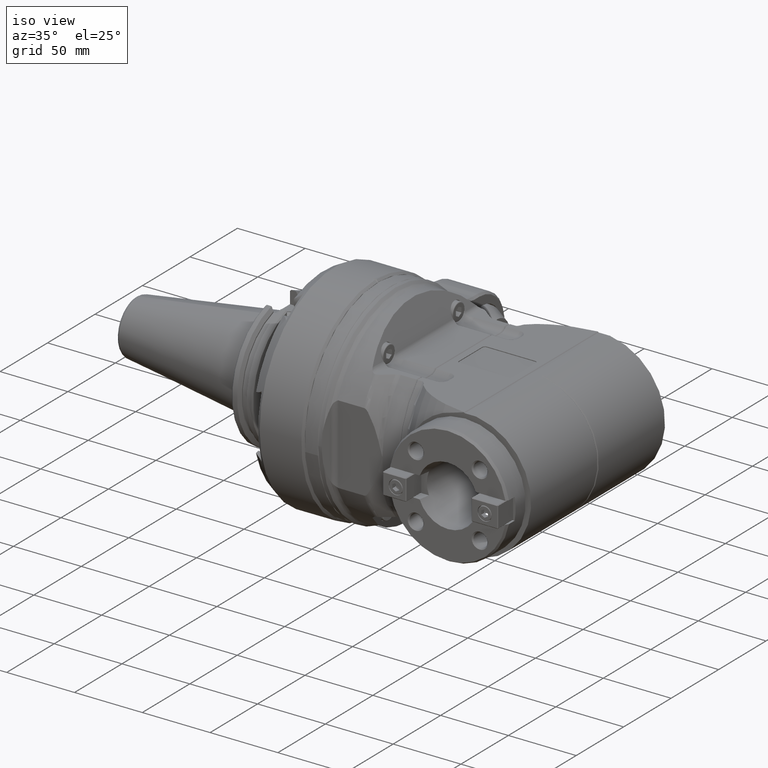
[diagram: clean part render]
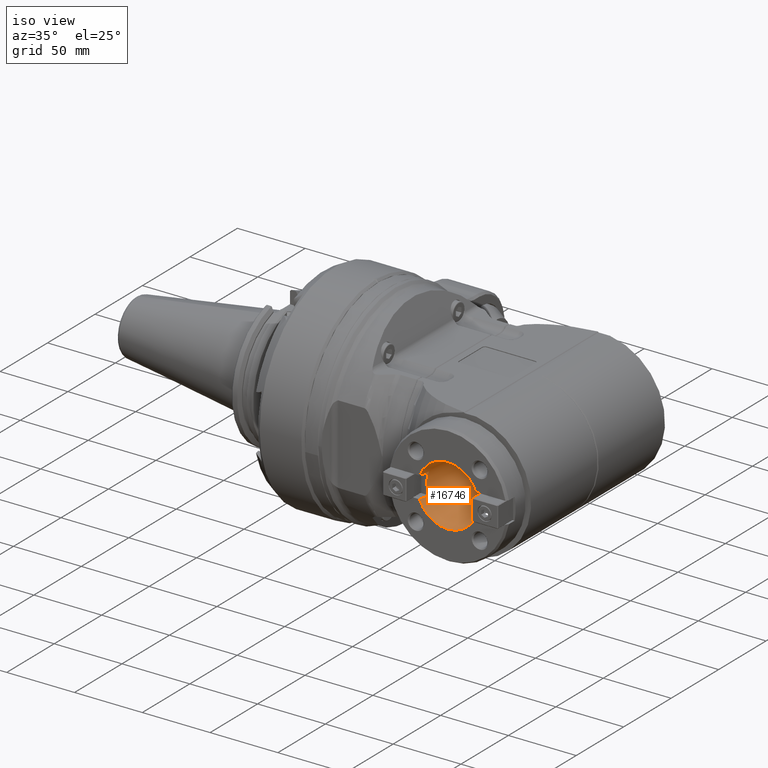
[diagram: same view with one face highlighted and labeled with its STEP entity id]
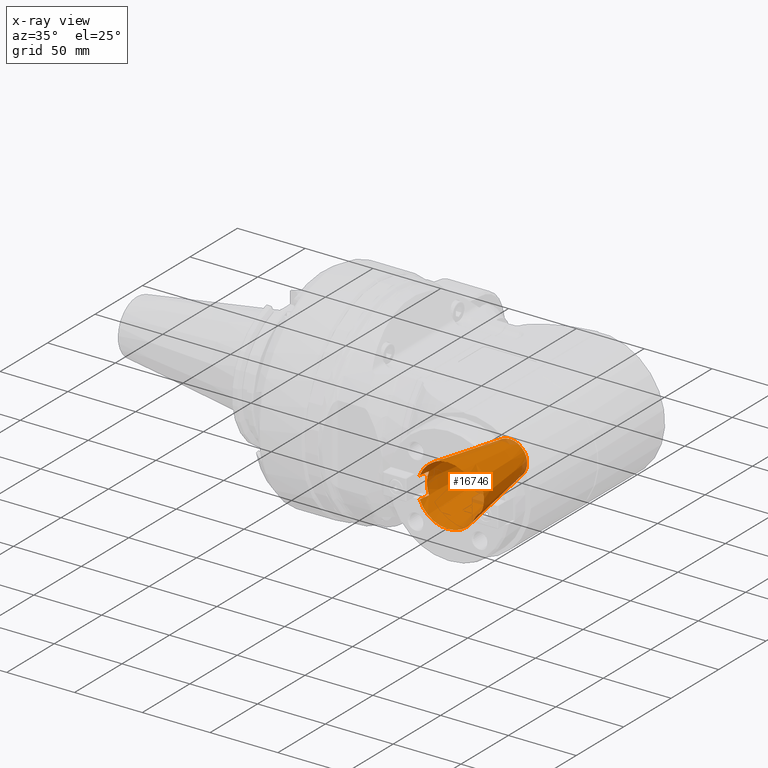
[diagram: x-ray of the same camera — body ghosted, the highlighted face saturated]
A machine part, iso view. The second image highlights one B-rep face of the part: STEP entity #16746.
The next image is the same camera in x-ray: the body ghosted, the highlighted face saturated — about 6% of this face is hidden behind the body in this view.
In plain terms, the highlighted conical surface has half-angle 8.297 deg.
Its self-contained STEP definition (entity closure, byte-faithful):
#258=(
BOUNDED_CURVE()
B_SPLINE_CURVE(2,(#41829,#41830,#41831),.UNSPECIFIED.,.F.,.F.)
B_SPLINE_CURVE_WITH_KNOTS((3,3),(-6.78852029854391,-6.20231524291867),
 .UNSPECIFIED.)
CURVE()
GEOMETRIC_REPRESENTATION_ITEM()
RATIONAL_B_SPLINE_CURVE((1.00114981680784,1.00588583737851,1.00979535053178))
REPRESENTATION_ITEM('')
);
#259=(
BOUNDED_CURVE()
B_SPLINE_CURVE(2,(#41839,#41840,#41841),.UNSPECIFIED.,.F.,.F.)
B_SPLINE_CURVE_WITH_KNOTS((3,3),(6.20231524142966,6.78852029689591),
 .UNSPECIFIED.)
CURVE()
GEOMETRIC_REPRESENTATION_ITEM()
RATIONAL_B_SPLINE_CURVE((1.0097953504751,1.0058858373194,1.00114981674638))
REPRESENTATION_ITEM('')
);
#260=(
BOUNDED_CURVE()
B_SPLINE_CURVE(2,(#41843,#41844,#41845),.UNSPECIFIED.,.F.,.F.)
B_SPLINE_CURVE_WITH_KNOTS((3,3),(0.0704216012168625,0.656626656842231),
 .UNSPECIFIED.)
CURVE()
GEOMETRIC_REPRESENTATION_ITEM()
RATIONAL_B_SPLINE_CURVE((1.00114981680784,1.00588583737849,1.00979535053175))
REPRESENTATION_ITEM('')
);
#261=(
BOUNDED_CURVE()
B_SPLINE_CURVE(2,(#41848,#41849,#41850),.UNSPECIFIED.,.F.,.F.)
B_SPLINE_CURVE_WITH_KNOTS((3,3),(6.20231524291798,6.78852029854373),
 .UNSPECIFIED.)
CURVE()
GEOMETRIC_REPRESENTATION_ITEM()
RATIONAL_B_SPLINE_CURVE((1.00979535053173,1.00588583737848,1.00114981680784))
REPRESENTATION_ITEM('')
);
#458=CONICAL_SURFACE('',#18532,17.43749997768,0.14481239404563);
#1976=FACE_OUTER_BOUND('',#2957,.T.);
#2957=EDGE_LOOP('',(#14131,#14132,#14133,#14134,#14135,#14136,#14137,#14138,
#14139,#14140,#14141,#14142,#14143));
#3982=LINE('',#41836,#5205);
#5205=VECTOR('',#22639,17.43749997768);
#6213=CIRCLE('',#18492,22.22499995537);
#6214=CIRCLE('',#18493,22.22499995537);
#6221=CIRCLE('',#18512,22.22499995537);
#6225=CIRCLE('',#18533,12.65);
#6226=CIRCLE('',#18534,21.05833418461);
#6227=CIRCLE('',#18535,21.05833418461);
#6228=CIRCLE('',#18536,12.65);
#7483=VERTEX_POINT('',#41645);
#7484=VERTEX_POINT('',#41647);
#7485=VERTEX_POINT('',#41649);
#7515=VERTEX_POINT('',#41733);
#7516=VERTEX_POINT('',#41735);
#7546=VERTEX_POINT('',#41827);
#7547=VERTEX_POINT('',#41833);
#7548=VERTEX_POINT('',#41834);
#7549=VERTEX_POINT('',#41837);
#7550=VERTEX_POINT('',#41842);
#7551=VERTEX_POINT('',#41846);
#9753=EDGE_CURVE('',#7483,#7484,#6213,.T.);
#9754=EDGE_CURVE('',#7484,#7485,#6214,.T.);
#9797=EDGE_CURVE('',#7515,#7516,#6221,.T.);
#9844=EDGE_CURVE('',#7483,#7546,#258,.T.);
#9845=EDGE_CURVE('',#7547,#7548,#6225,.T.);
#9846=EDGE_CURVE('',#7548,#7484,#3982,.T.);
#9847=EDGE_CURVE('',#7549,#7546,#6226,.T.);
#9848=EDGE_CURVE('',#7549,#7516,#259,.T.);
#9849=EDGE_CURVE('',#7515,#7550,#260,.T.);
#9850=EDGE_CURVE('',#7551,#7550,#6227,.T.);
#9851=EDGE_CURVE('',#7551,#7485,#261,.T.);
#9852=EDGE_CURVE('',#7548,#7547,#6228,.T.);
#14131=ORIENTED_EDGE('',*,*,#9845,.T.);
#14132=ORIENTED_EDGE('',*,*,#9846,.T.);
#14133=ORIENTED_EDGE('',*,*,#9753,.F.);
#14134=ORIENTED_EDGE('',*,*,#9844,.T.);
#14135=ORIENTED_EDGE('',*,*,#9847,.F.);
#14136=ORIENTED_EDGE('',*,*,#9848,.T.);
#14137=ORIENTED_EDGE('',*,*,#9797,.F.);
#14138=ORIENTED_EDGE('',*,*,#9849,.T.);
#14139=ORIENTED_EDGE('',*,*,#9850,.F.);
#14140=ORIENTED_EDGE('',*,*,#9851,.T.);
#14141=ORIENTED_EDGE('',*,*,#9754,.F.);
#14142=ORIENTED_EDGE('',*,*,#9846,.F.);
#14143=ORIENTED_EDGE('',*,*,#9852,.T.);
#16746=ADVANCED_FACE('',(#1976),#458,.F.);
#18492=AXIS2_PLACEMENT_3D('',#41648,#22476,#22477);
#18493=AXIS2_PLACEMENT_3D('',#41650,#22478,#22479);
#18512=AXIS2_PLACEMENT_3D('',#41736,#22552,#22553);
#18532=AXIS2_PLACEMENT_3D('',#41832,#22635,#22636);
#18533=AXIS2_PLACEMENT_3D('',#41835,#22637,#22638);
#18534=AXIS2_PLACEMENT_3D('',#41838,#22640,#22641);
#18535=AXIS2_PLACEMENT_3D('',#41847,#22642,#22643);
#18536=AXIS2_PLACEMENT_3D('',#41851,#22644,#22645);
#22476=DIRECTION('center_axis',(0.,1.,4.660711595067E-9));
#22477=DIRECTION('ref_axis',(7.031053928434E-9,-4.660711595067E-9,1.));
#22478=DIRECTION('center_axis',(0.,1.,4.660711595067E-9));
#22479=DIRECTION('ref_axis',(7.031053928434E-9,-4.660711595067E-9,1.));
#22552=DIRECTION('center_axis',(0.,1.,4.660711595067E-9));
#22553=DIRECTION('ref_axis',(-7.031056486068E-9,4.660711595067E-9,-1.));
#22635=DIRECTION('center_axis',(0.,-1.,-4.660711595067E-9));
#22636=DIRECTION('ref_axis',(-7.031056736828E-9,4.660711595067E-9,-1.));
#22637=DIRECTION('center_axis',(0.,1.,4.660711595067E-9));
#22638=DIRECTION('ref_axis',(-7.031059090238E-9,4.660711595067E-9,-1.));
#22639=DIRECTION('',(1.01462921010916E-9,-0.989532996771661,0.144306785357084));
#22640=DIRECTION('center_axis',(0.,1.,4.660711595067E-9));
#22641=DIRECTION('ref_axis',(-0.926000316662606,1.75952457668071E-9,-0.377522732482102));
#22642=DIRECTION('center_axis',(0.,1.,4.660711595067E-9));
#22643=DIRECTION('ref_axis',(0.926000316662606,-1.75952457668071E-9,0.377522732482102));
#22644=DIRECTION('center_axis',(0.,1.,4.660711595067E-9));
#22645=DIRECTION('ref_axis',(-7.031059090238E-9,4.660711595067E-9,-1.));
#41645=CARTESIAN_POINT('',(72.2455276847828,-90.4999998329158,7.94999972244503));
#41647=CARTESIAN_POINT('',(93.0000001562652,-90.4999998984439,22.224999548286));
#41648=CARTESIAN_POINT('Origin',(93.,-90.49999969395,-4.217944233238E-7));
#41649=CARTESIAN_POINT('',(113.754472427014,-90.4999998329133,7.94999943059155));
#41650=CARTESIAN_POINT('Origin',(93.,-90.49999969395,-4.217944233238E-7));
#41733=CARTESIAN_POINT('',(113.754472315217,-90.4999997588093,-7.95000056603401));
#41735=CARTESIAN_POINT('',(72.2455275729858,-90.4999997588091,-7.95000027417983));
#41736=CARTESIAN_POINT('Origin',(93.,-90.49999969395,-4.217944233238E-7));
#41827=CARTESIAN_POINT('',(73.49997598846,-82.50000003705,7.949999752597));
#41829=CARTESIAN_POINT('Ctrl Pts',(72.2455276783569,-90.4999998319122,7.94999972413159));
#41830=CARTESIAN_POINT('Ctrl Pts',(72.8896581317775,-86.3753481923183,7.94999973882648));
#41831=CARTESIAN_POINT('Ctrl Pts',(73.4999759884646,-82.5000000370507,7.94999975259719));
#41832=CARTESIAN_POINT('Origin',(93.,-57.67140446458,-2.687898088886E-7));
#41833=CARTESIAN_POINT('',(92.99999991106,-24.84280917626,-12.65000011579));
#41834=CARTESIAN_POINT('',(93.0000000889429,-24.8428092941784,12.6499998842119));
#41835=CARTESIAN_POINT('Origin',(93.,-24.84280923522,-1.157851944533E-7));
#41836=CARTESIAN_POINT('',(93.000000122604,-57.6714045458512,17.4374997088902));
#41837=CARTESIAN_POINT('',(73.49997587667,-82.49999996295,-7.950000247403));
#41838=CARTESIAN_POINT('Origin',(93.,-82.5,-3.845087319897E-7));
#41839=CARTESIAN_POINT('Ctrl Pts',(73.4999758766699,-82.49999996295,-7.95000024740269));
#41840=CARTESIAN_POINT('Ctrl Pts',(72.8896580199832,-86.3753481182151,-7.95000026117339));
#41841=CARTESIAN_POINT('Ctrl Pts',(72.2455275665631,-90.4999997578061,-7.95000027586829));
#41842=CARTESIAN_POINT('',(112.5000240115,-82.49999996295,-7.950000521614));
#41843=CARTESIAN_POINT('Ctrl Pts',(113.754472321643,-90.4999997578058,-7.95000056772003));
#41844=CARTESIAN_POINT('Ctrl Pts',(113.110341868223,-86.375348118212,-7.9500005439673));
#41845=CARTESIAN_POINT('Ctrl Pts',(112.500024011535,-82.4999999629444,-7.95000052161424));
#41846=CARTESIAN_POINT('',(112.5000241233,-82.50000003705,7.949999478386));
#41847=CARTESIAN_POINT('Origin',(93.,-82.5,-3.845087319897E-7));
#41848=CARTESIAN_POINT('Ctrl Pts',(112.500024123328,-82.5000000370455,7.94999947838563));
#41849=CARTESIAN_POINT('Ctrl Pts',(113.110341980016,-86.3753481923148,7.94999945603257));
#41850=CARTESIAN_POINT('Ctrl Pts',(113.754472433437,-90.4999998319103,7.94999943227984));
#41851=CARTESIAN_POINT('Origin',(93.,-24.84280923522,-1.157851944533E-7));